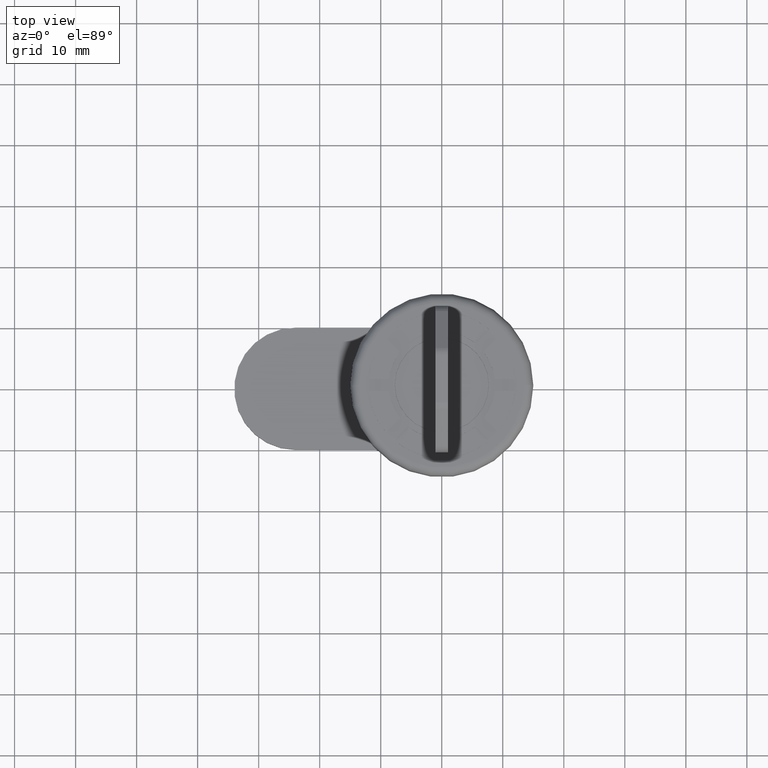
[diagram: clean part render]
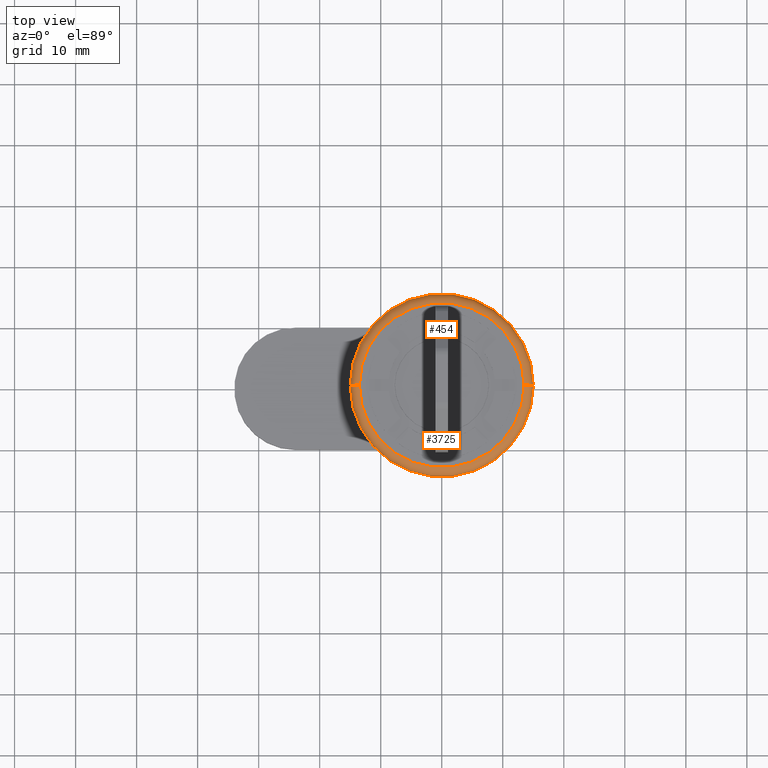
[diagram: same view with one multi-face feature highlighted, each face labeled with its STEP entity id]
A machine part, top view. The highlighted faces form ONE feature: a constant-radius fillet chain: 2 tangent blend faces with common blend radius 1.5 mm. The faces share edges in the B-rep.
Their STEP definitions:
[1] entity #454 (Torus):
#5 = AXIS2_PLACEMENT_3D ( 'NONE', #4108, #238, #4748 ) ;
#63 = VERTEX_POINT ( 'NONE', #1219 ) ;
#238 = DIRECTION ( 'NONE',  ( 0.0000000000000000000, -1.000000000000000000, 0.0000000000000000000 ) ) ;
#454 = ADVANCED_FACE ( 'NONE', ( #4314 ), #1281, .T. ) ;
#696 = DIRECTION ( 'NONE',  ( 1.000000000000000000, 0.0000000000000000000, 0.0000000000000000000 ) ) ;
#721 = DIRECTION ( 'NONE',  ( 0.0000000000000000000, 0.0000000000000000000, 1.000000000000000000 ) ) ;
#1045 = VERTEX_POINT ( 'NONE', #3765 ) ;
#1219 = CARTESIAN_POINT ( 'NONE',  ( 15.00000000000000000, 0.0000000000000000000, -1.499999999999999600 ) ) ;
#1281 = TOROIDAL_SURFACE ( 'NONE', #5758, 13.50000000000000000, 1.500000000000000000 ) ;
#1725 = EDGE_CURVE ( 'NONE', #3385, #5760, #4685, .T. ) ;
#2022 = CARTESIAN_POINT ( 'NONE',  ( -13.50000000000000000, 1.745121688784978200E-015, 0.0000000000000000000 ) ) ;
#2142 = DIRECTION ( 'NONE',  ( 1.224646799147353200E-016, 1.000000000000000000, -0.0000000000000000000 ) ) ;
#2458 = ORIENTED_EDGE ( 'NONE', *, *, #1725, .F. ) ;
#2565 = CIRCLE ( 'NONE', #5, 1.500000000000000000 ) ;
#3227 = CIRCLE ( 'NONE', #4283, 15.00000000000000000 ) ;
#3294 = EDGE_CURVE ( 'NONE', #1045, #63, #3227, .T. ) ;
#3385 = VERTEX_POINT ( 'NONE', #4307 ) ;
#3532 = CARTESIAN_POINT ( 'NONE',  ( 0.0000000000000000000, 0.0000000000000000000, -1.499999999999999600 ) ) ;
#3590 = ORIENTED_EDGE ( 'NONE', *, *, #3294, .F. ) ;
#3765 = CARTESIAN_POINT ( 'NONE',  ( -15.00000000000000000, 1.836970198721029600E-015, -1.499999999999999600 ) ) ;
#4108 = CARTESIAN_POINT ( 'NONE',  ( 13.50000000000000000, 0.0000000000000000000, -1.499999999999999600 ) ) ;
#4192 = DIRECTION ( 'NONE',  ( 1.000000000000000000, 0.0000000000000000000, 0.0000000000000000000 ) ) ;
#4241 = DIRECTION ( 'NONE',  ( 1.000000000000000000, 0.0000000000000000000, 0.0000000000000000000 ) ) ;
#4283 = AXIS2_PLACEMENT_3D ( 'NONE', #3532, #7993, #4192 ) ;
#4307 = CARTESIAN_POINT ( 'NONE',  ( 13.50000000000000000, 0.0000000000000000000, 0.0000000000000000000 ) ) ;
#4314 = FACE_OUTER_BOUND ( 'NONE', #6725, .T. ) ;
#4332 = EDGE_CURVE ( 'NONE', #1045, #5760, #4536, .T. ) ;
#4380 = ORIENTED_EDGE ( 'NONE', *, *, #4332, .T. ) ;
#4536 = CIRCLE ( 'NONE', #5656, 1.499999999999999600 ) ;
#4685 = CIRCLE ( 'NONE', #7933, 13.50000000000000000 ) ;
#4688 = CARTESIAN_POINT ( 'NONE',  ( 0.0000000000000000000, 0.0000000000000000000, 0.0000000000000000000 ) ) ;
#4748 = DIRECTION ( 'NONE',  ( 0.0000000000000000000, 0.0000000000000000000, -1.000000000000000000 ) ) ;
#5656 = AXIS2_PLACEMENT_3D ( 'NONE', #6016, #2142, #6643 ) ;
#5758 = AXIS2_PLACEMENT_3D ( 'NONE', #6132, #7410, #4241 ) ;
#5760 = VERTEX_POINT ( 'NONE', #2022 ) ;
#6016 = CARTESIAN_POINT ( 'NONE',  ( -13.50000000000000000, 1.653273178848926900E-015, -1.499999999999999600 ) ) ;
#6132 = CARTESIAN_POINT ( 'NONE',  ( 0.0000000000000000000, 0.0000000000000000000, -1.499999999999999600 ) ) ;
#6450 = EDGE_CURVE ( 'NONE', #63, #3385, #2565, .T. ) ;
#6643 = DIRECTION ( 'NONE',  ( -1.000000000000000000, 1.224646799147354700E-016, 0.0000000000000000000 ) ) ;
#6725 = EDGE_LOOP ( 'NONE', ( #3590, #4380, #2458, #6822 ) ) ;
#6822 = ORIENTED_EDGE ( 'NONE', *, *, #6450, .F. ) ;
#7410 = DIRECTION ( 'NONE',  ( 0.0000000000000000000, 0.0000000000000000000, 1.000000000000000000 ) ) ;
#7933 = AXIS2_PLACEMENT_3D ( 'NONE', #4688, #721, #696 ) ;
#7993 = DIRECTION ( 'NONE',  ( -0.0000000000000000000, -0.0000000000000000000, -1.000000000000000000 ) ) ;
[2] entity #3725 (Torus):
#5 = AXIS2_PLACEMENT_3D ( 'NONE', #4108, #238, #4748 ) ;
#63 = VERTEX_POINT ( 'NONE', #1219 ) ;
#238 = DIRECTION ( 'NONE',  ( 0.0000000000000000000, -1.000000000000000000, 0.0000000000000000000 ) ) ;
#327 = ORIENTED_EDGE ( 'NONE', *, *, #4547, .F. ) ;
#810 = CIRCLE ( 'NONE', #2717, 15.00000000000000000 ) ;
#1045 = VERTEX_POINT ( 'NONE', #3765 ) ;
#1219 = CARTESIAN_POINT ( 'NONE',  ( 15.00000000000000000, 0.0000000000000000000, -1.499999999999999600 ) ) ;
#1575 = CARTESIAN_POINT ( 'NONE',  ( 0.0000000000000000000, 0.0000000000000000000, -1.499999999999999600 ) ) ;
#1645 = ORIENTED_EDGE ( 'NONE', *, *, #3192, .F. ) ;
#2022 = CARTESIAN_POINT ( 'NONE',  ( -13.50000000000000000, 1.745121688784978200E-015, 0.0000000000000000000 ) ) ;
#2095 = CARTESIAN_POINT ( 'NONE',  ( 0.0000000000000000000, 0.0000000000000000000, 0.0000000000000000000 ) ) ;
#2142 = DIRECTION ( 'NONE',  ( 1.224646799147353200E-016, 1.000000000000000000, -0.0000000000000000000 ) ) ;
#2443 = EDGE_LOOP ( 'NONE', ( #4263, #327, #3935, #1645 ) ) ;
#2565 = CIRCLE ( 'NONE', #5, 1.500000000000000000 ) ;
#2717 = AXIS2_PLACEMENT_3D ( 'NONE', #3286, #7751, #3940 ) ;
#2725 = DIRECTION ( 'NONE',  ( 1.000000000000000000, 0.0000000000000000000, 0.0000000000000000000 ) ) ;
#3192 = EDGE_CURVE ( 'NONE', #5760, #3385, #5751, .T. ) ;
#3286 = CARTESIAN_POINT ( 'NONE',  ( 0.0000000000000000000, 0.0000000000000000000, -1.499999999999999600 ) ) ;
#3385 = VERTEX_POINT ( 'NONE', #4307 ) ;
#3725 = ADVANCED_FACE ( 'NONE', ( #7434 ), #7236, .T. ) ;
#3765 = CARTESIAN_POINT ( 'NONE',  ( -15.00000000000000000, 1.836970198721029600E-015, -1.499999999999999600 ) ) ;
#3935 = ORIENTED_EDGE ( 'NONE', *, *, #6450, .T. ) ;
#3940 = DIRECTION ( 'NONE',  ( 1.000000000000000000, 0.0000000000000000000, 0.0000000000000000000 ) ) ;
#4108 = CARTESIAN_POINT ( 'NONE',  ( 13.50000000000000000, 0.0000000000000000000, -1.499999999999999600 ) ) ;
#4263 = ORIENTED_EDGE ( 'NONE', *, *, #4332, .F. ) ;
#4307 = CARTESIAN_POINT ( 'NONE',  ( 13.50000000000000000, 0.0000000000000000000, 0.0000000000000000000 ) ) ;
#4332 = EDGE_CURVE ( 'NONE', #1045, #5760, #4536, .T. ) ;
#4536 = CIRCLE ( 'NONE', #5656, 1.499999999999999600 ) ;
#4547 = EDGE_CURVE ( 'NONE', #63, #1045, #810, .T. ) ;
#4748 = DIRECTION ( 'NONE',  ( 0.0000000000000000000, 0.0000000000000000000, -1.000000000000000000 ) ) ;
#4788 = DIRECTION ( 'NONE',  ( 0.0000000000000000000, 0.0000000000000000000, 1.000000000000000000 ) ) ;
#5656 = AXIS2_PLACEMENT_3D ( 'NONE', #6016, #2142, #6643 ) ;
#5751 = CIRCLE ( 'NONE', #7013, 13.50000000000000000 ) ;
#5760 = VERTEX_POINT ( 'NONE', #2022 ) ;
#6016 = CARTESIAN_POINT ( 'NONE',  ( -13.50000000000000000, 1.653273178848926900E-015, -1.499999999999999600 ) ) ;
#6450 = EDGE_CURVE ( 'NONE', #63, #3385, #2565, .T. ) ;
#6590 = DIRECTION ( 'NONE',  ( 0.0000000000000000000, 0.0000000000000000000, 1.000000000000000000 ) ) ;
#6643 = DIRECTION ( 'NONE',  ( -1.000000000000000000, 1.224646799147354700E-016, 0.0000000000000000000 ) ) ;
#6683 = DIRECTION ( 'NONE',  ( 1.000000000000000000, 0.0000000000000000000, 0.0000000000000000000 ) ) ;
#7013 = AXIS2_PLACEMENT_3D ( 'NONE', #2095, #6590, #2725 ) ;
#7236 = TOROIDAL_SURFACE ( 'NONE', #7243, 13.50000000000000000, 1.500000000000000000 ) ;
#7243 = AXIS2_PLACEMENT_3D ( 'NONE', #1575, #4788, #6683 ) ;
#7434 = FACE_OUTER_BOUND ( 'NONE', #2443, .T. ) ;
#7751 = DIRECTION ( 'NONE',  ( -0.0000000000000000000, -0.0000000000000000000, -1.000000000000000000 ) ) ;